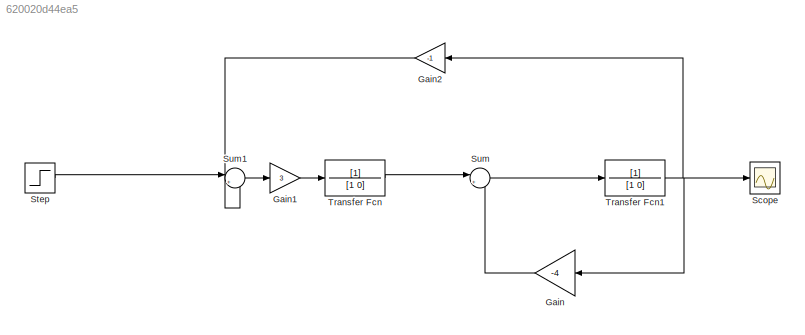
MODEL slx_620020d44ea5
KIND model
CONFIG AbsTol = auto
CONFIG EnableMultiTasking = off
CONFIG FixedStep = auto
CONFIG MaxStep = auto
CONFIG MinStep = auto
CONFIG RelTol = 1e-3
CONFIG SampleTimeConstraint = Unconstrained
CONFIG SolverName = VariableStepAuto
CONFIG StartTime = 0.0
CONFIG StopTime = 40
BLOCK [Gain] Gain
  Gain = -4
  NameLocation = top
BLOCK [Gain] Gain1
  Gain = 3
BLOCK [Gain] Gain2
  Gain = -1
BLOCK [Scope] Scope
  Floating = off
  NumInputPorts = 1
  ScopeSpecificationString = Simulink.scopes.TimeScopeBlockCfg('CurrentConfiguration', extmgr.ConfigurationSet(extmgr.Configuration('Core','General UI',true),extmgr.Configuration('Core','Source UI',true),extmgr.Configuration('Sources','WiredSimulink',true),extmgr.Configuration('Visuals','Time Domain',true,'SerializedDisplays',{struct('MinYLimReal','-0.125','MaxYLimReal','1.125','YLabelReal','','MinYLimMag','0.00000','MaxYLimM...<+1351ch>
BLOCK [Step] Step
  SampleTime = 0
BLOCK [Sum] Sum
  Inputs = |++
BLOCK [Sum] Sum1
  Inputs = |++
BLOCK [TransferFcn] Transfer Fcn
  Denominator = [1 0]
BLOCK [TransferFcn] Transfer Fcn1
  Denominator = [1 0]
LINE Gain1:1 -> Transfer Fcn:1
LINE Gain2:1 -> Sum1:2
LINE Gain:1 -> Sum:2
LINE Step:1 -> Sum1:1
LINE Sum1:1 -> Gain1:1
LINE Sum:1 -> Transfer Fcn1:1
NET Transfer Fcn1:1 -> Gain2:1, Gain:1, Scope:1
LINE Transfer Fcn:1 -> Sum:1
note: NET lines group one-source signal fan-out (src -> all destinations, sorted); 1:1 wires keep LINE
